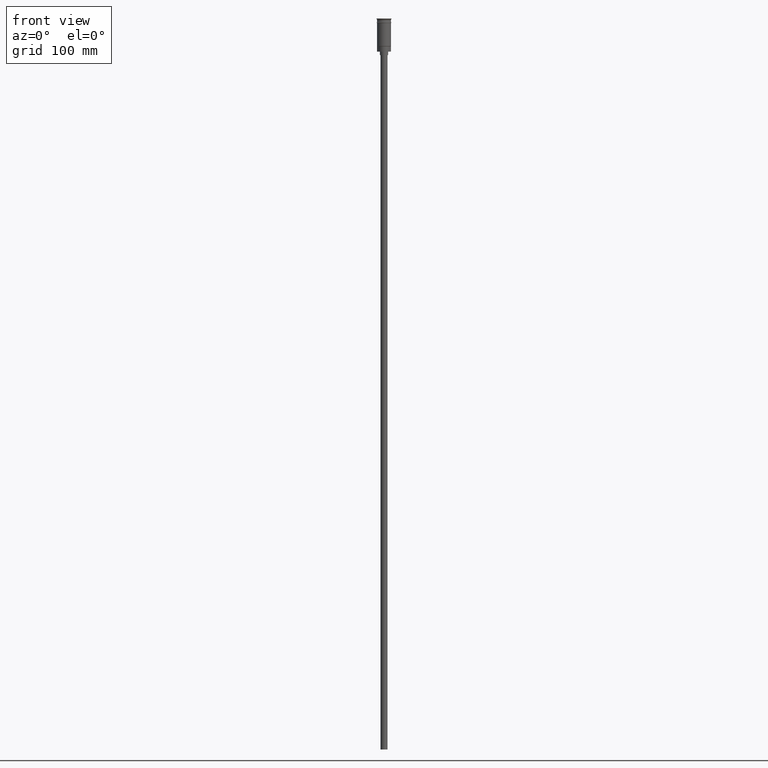
[diagram: clean part render]
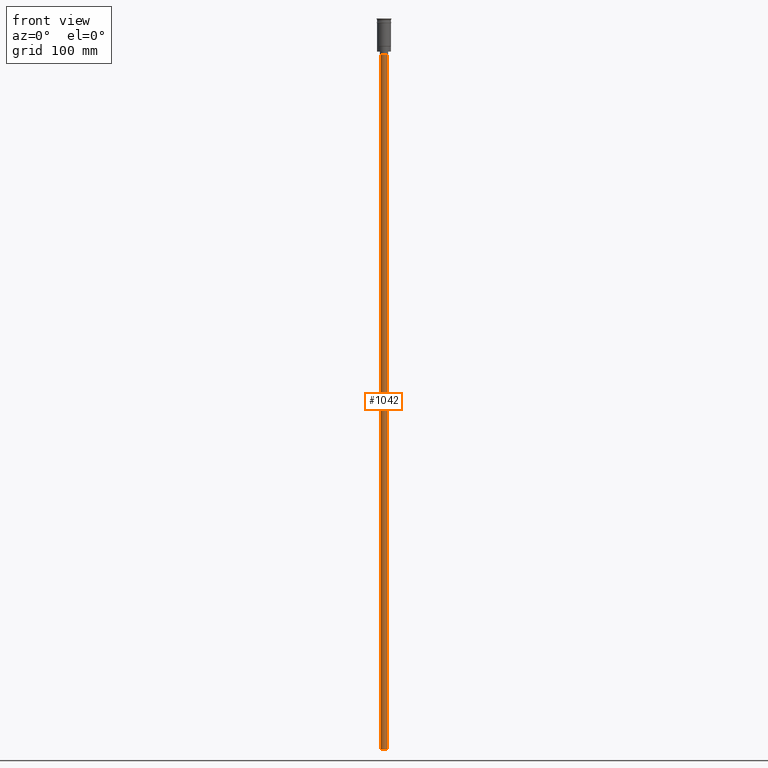
[diagram: same view with one face highlighted and labeled with its STEP entity id]
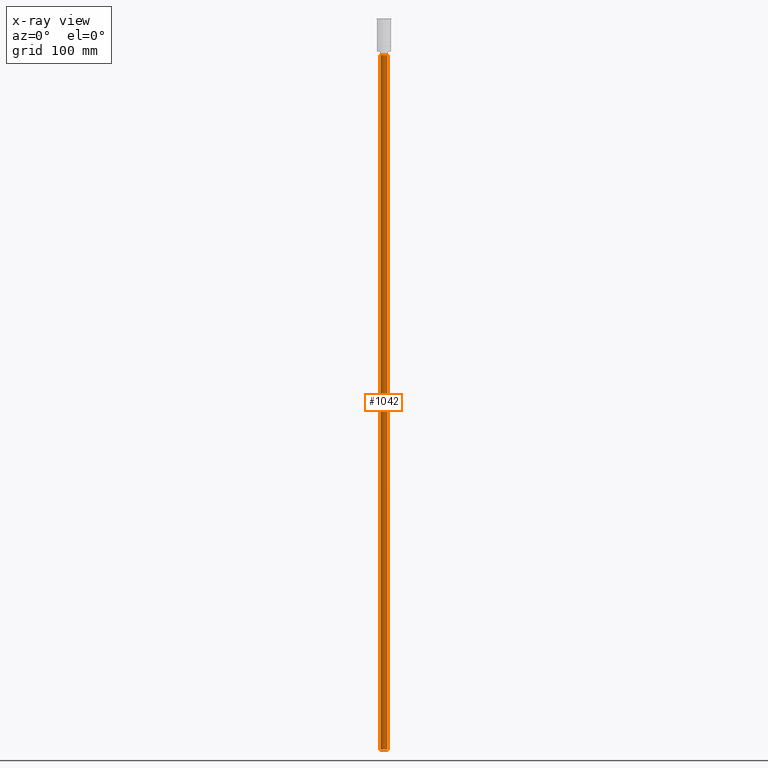
[diagram: x-ray of the same camera — body ghosted, the highlighted face saturated]
A machine part, front view. The second image highlights one B-rep face of the part: STEP entity #1042.
The next image is the same camera in x-ray: the body ghosted, the highlighted face saturated — about 0% of this face is hidden behind the body in this view.
In plain terms, the highlighted cylindrical surface (edge-blend (fillet) strip) has radius 3 mm, axis along (-0, -0, 1).
Its self-contained STEP definition (entity closure, byte-faithful):
#41 = VERTEX_POINT ( 'NONE', #647 ) ;
#61 = VERTEX_POINT ( 'NONE', #189 ) ;
#85 = DIRECTION ( 'NONE',  ( -0.000000000000000000, -0.000000000000000000, 1.000000000000000000 ) ) ;
#102 = DIRECTION ( 'NONE',  ( -1.000000000000000000, 0.000000000000000000, 0.000000000000000000 ) ) ;
#151 = AXIS2_PLACEMENT_3D ( 'NONE', #1014, #417, #272 ) ;
#168 = ORIENTED_EDGE ( 'NONE', *, *, #339, .F. ) ;
#189 = CARTESIAN_POINT ( 'NONE',  ( -3.000000000000000444, 3.673940397442060361E-16, -31.50000000000000000 ) ) ;
#229 = CARTESIAN_POINT ( 'NONE',  ( 0.000000000000000000, 0.000000000000000000, -628.5000000000000000 ) ) ;
#231 = VERTEX_POINT ( 'NONE', #994 ) ;
#272 = DIRECTION ( 'NONE',  ( -1.000000000000000000, 0.000000000000000000, 0.000000000000000000 ) ) ;
#339 = EDGE_CURVE ( 'NONE', #817, #231, #926, .T. ) ;
#391 = EDGE_CURVE ( 'NONE', #817, #41, #1398, .T. ) ;
#408 = DIRECTION ( 'NONE',  ( -0.000000000000000000, -0.000000000000000000, 1.000000000000000000 ) ) ;
#417 = DIRECTION ( 'NONE',  ( 0.000000000000000000, 0.000000000000000000, -1.000000000000000000 ) ) ;
#551 = EDGE_CURVE ( 'NONE', #231, #61, #656, .T. ) ;
#647 = CARTESIAN_POINT ( 'NONE',  ( 3.000000000000000444, 0.000000000000000000, -31.50000000000000000 ) ) ;
#656 = LINE ( 'NONE', #1192, #998 ) ;
#693 = FACE_OUTER_BOUND ( 'NONE', #1063, .T. ) ;
#747 = CARTESIAN_POINT ( 'NONE',  ( 3.000000000000000444, 0.000000000000000000, -628.5000000000000000 ) ) ;
#817 = VERTEX_POINT ( 'NONE', #1385 ) ;
#834 = DIRECTION ( 'NONE',  ( 0.000000000000000000, 0.000000000000000000, -1.000000000000000000 ) ) ;
#835 = ORIENTED_EDGE ( 'NONE', *, *, #551, .F. ) ;
#846 = AXIS2_PLACEMENT_3D ( 'NONE', #1326, #85, #1205 ) ;
#850 = ORIENTED_EDGE ( 'NONE', *, *, #1378, .T. ) ;
#892 = ORIENTED_EDGE ( 'NONE', *, *, #391, .T. ) ;
#926 = CIRCLE ( 'NONE', #1262, 3.000000000000000444 ) ;
#994 = CARTESIAN_POINT ( 'NONE',  ( -3.000000000000000444, 3.673940397442060361E-16, -628.5000000000000000 ) ) ;
#998 = VECTOR ( 'NONE', #1299, 1000.000000000000000 ) ;
#1014 = CARTESIAN_POINT ( 'NONE',  ( 0.000000000000000000, 0.000000000000000000, -31.50000000000000000 ) ) ;
#1042 = ADVANCED_FACE ( 'NONE', ( #693 ), #1191, .T. ) ;
#1063 = EDGE_LOOP ( 'NONE', ( #835, #168, #892, #850 ) ) ;
#1191 = CYLINDRICAL_SURFACE ( 'NONE', #846, 3.000000000000000444 ) ;
#1192 = CARTESIAN_POINT ( 'NONE',  ( -3.000000000000000444, 3.673940397442060361E-16, -628.5000000000000000 ) ) ;
#1205 = DIRECTION ( 'NONE',  ( 1.000000000000000000, 0.000000000000000000, 0.000000000000000000 ) ) ;
#1262 = AXIS2_PLACEMENT_3D ( 'NONE', #229, #834, #102 ) ;
#1299 = DIRECTION ( 'NONE',  ( -0.000000000000000000, -0.000000000000000000, 1.000000000000000000 ) ) ;
#1326 = CARTESIAN_POINT ( 'NONE',  ( 0.000000000000000000, 0.000000000000000000, -628.5000000000000000 ) ) ;
#1378 = EDGE_CURVE ( 'NONE', #41, #61, #1546, .T. ) ;
#1385 = CARTESIAN_POINT ( 'NONE',  ( 3.000000000000000444, 0.000000000000000000, -628.5000000000000000 ) ) ;
#1398 = LINE ( 'NONE', #747, #1578 ) ;
#1546 = CIRCLE ( 'NONE', #151, 3.000000000000000444 ) ;
#1578 = VECTOR ( 'NONE', #408, 1000.000000000000000 ) ;